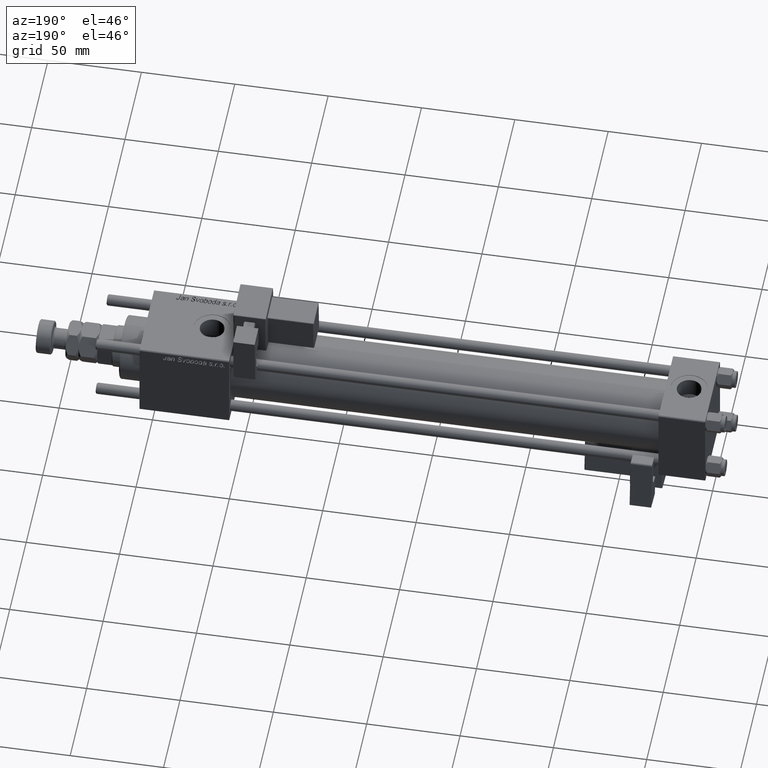
[diagram: clean part render]
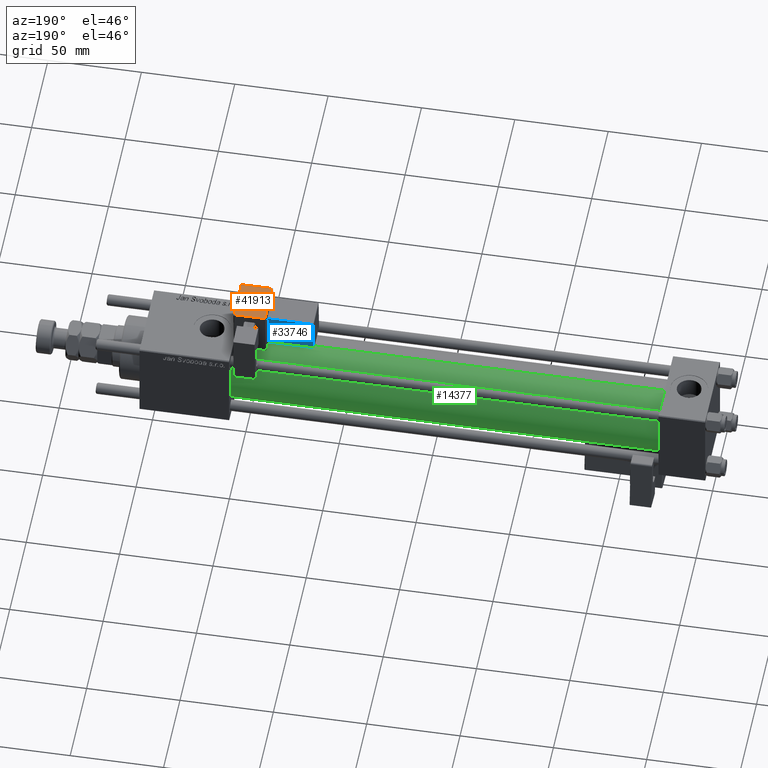
[diagram: same view with three faces highlighted in distinct colors, each labeled with its STEP entity id]
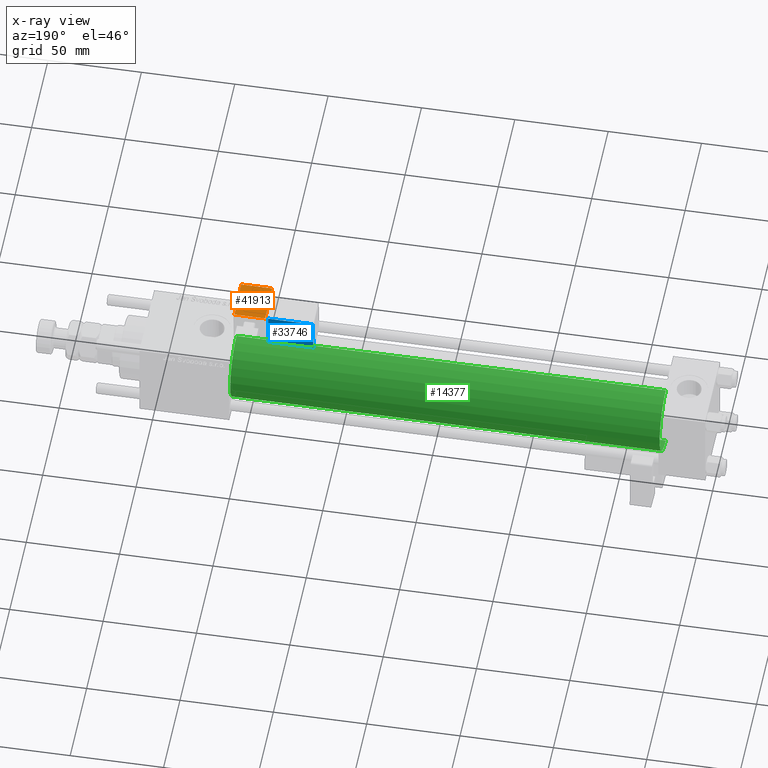
[diagram: x-ray of the same camera — body ghosted, the three highlighted faces saturated]
A machine part, auxiliary view with three faces highlighted in distinct colors.
The next image is the same camera in x-ray (body ghosted, the three faces saturated) — at least one of them is partly hidden behind the body in this view.
Their STEP definitions:

[orange] entity #41913 — the highlighted planar face has unit normal (0, -0.0692, -0.9976).
#2528 = DIRECTION ( 'NONE',  ( -1.000000000000000000, -0.000000000000000000, 0.000000000000000000 ) ) ;
#2766 = DIRECTION ( 'NONE',  ( -0.000000000000000000, -1.000000000000000000, -0.000000000000000000 ) ) ;
#3749 = DIRECTION ( 'NONE',  ( 0.000000000000000000, 0.000000000000000000, 1.000000000000000000 ) ) ;
#3916 = EDGE_CURVE ( 'NONE', #35099, #11605, #10267, .T. ) ;
#10267 = LINE ( 'NONE', #49947, #33295 ) ;
#11002 = VERTEX_POINT ( 'NONE', #13899 ) ;
#11411 = VECTOR ( 'NONE', #2766, 1000.000000000000000 ) ;
#11605 = VERTEX_POINT ( 'NONE', #57174 ) ;
#13043 = VECTOR ( 'NONE', #46683, 1000.000000000000000 ) ;
#13390 = ORIENTED_EDGE ( 'NONE', *, *, #18334, .T. ) ;
#13899 = CARTESIAN_POINT ( 'NONE',  ( -8.250000000000003553, -33.25000000000000000, -1.000000000000000222 ) ) ;
#16527 = CARTESIAN_POINT ( 'NONE',  ( -8.250000000000003553, -12.25000000000000000, -1.000000000000000222 ) ) ;
#17407 = PLANE ( 'NONE',  #38586 ) ;
#18334 = EDGE_CURVE ( 'NONE', #11605, #59000, #21807, .T. ) ;
#21572 = CARTESIAN_POINT ( 'NONE',  ( 8.750000000000003553, -33.25000000000000000, -1.000000000000000222 ) ) ;
#21608 = LINE ( 'NONE', #32050, #13043 ) ;
#21807 = LINE ( 'NONE', #32246, #11411 ) ;
#27705 = ORIENTED_EDGE ( 'NONE', *, *, #36612, .T. ) ;
#28072 = ORIENTED_EDGE ( 'NONE', *, *, #59476, .T. ) ;
#29618 = DIRECTION ( 'NONE',  ( 1.000000000000000000, -0.000000000000000000, 0.000000000000000000 ) ) ;
#30182 = ORIENTED_EDGE ( 'NONE', *, *, #3916, .T. ) ;
#31688 = DIRECTION ( 'NONE',  ( 1.000000000000000000, 0.000000000000000000, -0.000000000000000000 ) ) ;
#32050 = CARTESIAN_POINT ( 'NONE',  ( -8.250000000000003553, -33.75000000000000000, -1.000000000000000222 ) ) ;
#32246 = CARTESIAN_POINT ( 'NONE',  ( 8.250000000000003553, -33.75000000000000000, -1.000000000000000222 ) ) ;
#33295 = VECTOR ( 'NONE', #29618, 1000.000000000000000 ) ;
#35099 = VERTEX_POINT ( 'NONE', #16527 ) ;
#36612 = EDGE_CURVE ( 'NONE', #11002, #35099, #21608, .T. ) ;
#38586 = AXIS2_PLACEMENT_3D ( 'NONE', #61212, #3749, #31688 ) ;
#41913 = ADVANCED_FACE ( 'NONE', ( #57072 ), #17407, .F. ) ;
#43097 = VECTOR ( 'NONE', #2528, 1000.000000000000000 ) ;
#46683 = DIRECTION ( 'NONE',  ( -0.000000000000000000, 1.000000000000000000, 0.000000000000000000 ) ) ;
#49947 = CARTESIAN_POINT ( 'NONE',  ( 8.750000000000003553, -12.25000000000000000, -1.000000000000000222 ) ) ;
#51524 = EDGE_LOOP ( 'NONE', ( #30182, #13390, #28072, #27705 ) ) ;
#52167 = CARTESIAN_POINT ( 'NONE',  ( 8.250000000000003553, -33.25000000000000000, -1.000000000000000222 ) ) ;
#55227 = LINE ( 'NONE', #21572, #43097 ) ;
#57072 = FACE_OUTER_BOUND ( 'NONE', #51524, .T. ) ;
#57174 = CARTESIAN_POINT ( 'NONE',  ( 8.250000000000003553, -12.25000000000000000, -1.000000000000000222 ) ) ;
#59000 = VERTEX_POINT ( 'NONE', #52167 ) ;
#59476 = EDGE_CURVE ( 'NONE', #59000, #11002, #55227, .T. ) ;
#61212 = CARTESIAN_POINT ( 'NONE',  ( 8.750000000000003553, -33.75000000000000000, -1.000000000000000222 ) ) ;

[blue] entity #33746 — the highlighted planar face has unit normal (0, -0.9976, 0.0692).
#3818 = VERTEX_POINT ( 'NONE', #53118 ) ;
#5697 = ORIENTED_EDGE ( 'NONE', *, *, #59700, .T. ) ;
#8532 = DIRECTION ( 'NONE',  ( -1.000000000000000000, 0.000000000000000000, -1.334402673828313339E-16 ) ) ;
#8584 = VECTOR ( 'NONE', #13772, 1000.000000000000000 ) ;
#8987 = EDGE_LOOP ( 'NONE', ( #47765, #58691, #39573, #5697 ) ) ;
#13772 = DIRECTION ( 'NONE',  ( 1.000000000000000000, -0.000000000000000000, 1.334402673828313339E-16 ) ) ;
#14251 = LINE ( 'NONE', #39327, #18290 ) ;
#17778 = VECTOR ( 'NONE', #25001, 1000.000000000000000 ) ;
#18290 = VECTOR ( 'NONE', #29165, 1000.000000000000000 ) ;
#19993 = VERTEX_POINT ( 'NONE', #59649 ) ;
#20962 = EDGE_CURVE ( 'NONE', #19993, #43950, #52010, .T. ) ;
#22226 = FACE_OUTER_BOUND ( 'NONE', #8987, .T. ) ;
#23393 = EDGE_CURVE ( 'NONE', #3818, #35434, #52188, .T. ) ;
#25001 = DIRECTION ( 'NONE',  ( 1.734723475976807341E-16, -0.000000000000000000, -1.000000000000000000 ) ) ;
#28378 = CARTESIAN_POINT ( 'NONE',  ( 33.25000000000000000, -15.25000000000000000, 21.50000000000000355 ) ) ;
#29165 = DIRECTION ( 'NONE',  ( -1.334402673828313339E-16, 0.000000000000000000, 1.000000000000000000 ) ) ;
#32051 = DIRECTION ( 'NONE',  ( 0.000000000000000000, -1.000000000000000000, 0.000000000000000000 ) ) ;
#32166 = CARTESIAN_POINT ( 'NONE',  ( 33.75000000000000000, -15.25000000000000000, 21.50000000000000355 ) ) ;
#33746 = ADVANCED_FACE ( 'NONE', ( #22226 ), #61267, .F. ) ;
#35434 = VERTEX_POINT ( 'NONE', #28378 ) ;
#39327 = CARTESIAN_POINT ( 'NONE',  ( 9.250000000000001776, -15.25000000000000000, 22.00000000000000355 ) ) ;
#39573 = ORIENTED_EDGE ( 'NONE', *, *, #23393, .T. ) ;
#41596 = CARTESIAN_POINT ( 'NONE',  ( 33.75000000000000000, -15.25000000000000000, 22.00000000000000711 ) ) ;
#41632 = EDGE_CURVE ( 'NONE', #43950, #3818, #14251, .T. ) ;
#43950 = VERTEX_POINT ( 'NONE', #47808 ) ;
#44054 = CARTESIAN_POINT ( 'NONE',  ( 33.25000000000000000, -15.25000000000000000, 2.000000000000008438 ) ) ;
#47549 = AXIS2_PLACEMENT_3D ( 'NONE', #41596, #32051, #51432 ) ;
#47765 = ORIENTED_EDGE ( 'NONE', *, *, #20962, .T. ) ;
#47808 = CARTESIAN_POINT ( 'NONE',  ( 9.250000000000003553, -15.25000000000000000, 2.500000000000005773 ) ) ;
#48003 = VECTOR ( 'NONE', #8532, 1000.000000000000000 ) ;
#51432 = DIRECTION ( 'NONE',  ( 0.000000000000000000, -0.000000000000000000, -1.000000000000000000 ) ) ;
#52010 = LINE ( 'NONE', #56140, #48003 ) ;
#52188 = LINE ( 'NONE', #32166, #8584 ) ;
#53118 = CARTESIAN_POINT ( 'NONE',  ( 9.250000000000001776, -15.25000000000000000, 21.50000000000000000 ) ) ;
#53268 = LINE ( 'NONE', #44054, #17778 ) ;
#56140 = CARTESIAN_POINT ( 'NONE',  ( 33.75000000000000000, -15.25000000000000000, 2.500000000000009326 ) ) ;
#58691 = ORIENTED_EDGE ( 'NONE', *, *, #41632, .T. ) ;
#59649 = CARTESIAN_POINT ( 'NONE',  ( 33.25000000000000000, -15.25000000000000000, 2.500000000000009326 ) ) ;
#59700 = EDGE_CURVE ( 'NONE', #35434, #19993, #53268, .T. ) ;
#61267 = PLANE ( 'NONE',  #47549 ) ;

[green] entity #14377 — the highlighted cylindrical surface (edge-blend (fillet) strip) has radius 19 mm, axis along (-1, -0, -0).
#6579 = CARTESIAN_POINT ( 'NONE',  ( 255.0000000000000000, -2.602085213965210642E-15, 0.000000000000000000 ) ) ;
#7416 = VERTEX_POINT ( 'NONE', #21274 ) ;
#9409 = DIRECTION ( 'NONE',  ( -1.000000000000000000, -0.000000000000000000, -0.000000000000000000 ) ) ;
#12126 = DIRECTION ( 'NONE',  ( -1.000000000000000000, -0.000000000000000000, -0.000000000000000000 ) ) ;
#14377 = ADVANCED_FACE ( 'NONE', ( #31298 ), #35438, .T. ) ;
#16674 = DIRECTION ( 'NONE',  ( 0.000000000000000000, 0.000000000000000000, 1.000000000000000000 ) ) ;
#19125 = EDGE_LOOP ( 'NONE', ( #21821, #54173, #48935, #48447 ) ) ;
#21274 = CARTESIAN_POINT ( 'NONE',  ( 24.99999999999999289, -2.602085213965210642E-15, 19.00000000000000000 ) ) ;
#21776 = DIRECTION ( 'NONE',  ( 0.000000000000000000, 0.000000000000000000, 1.000000000000000000 ) ) ;
#21821 = ORIENTED_EDGE ( 'NONE', *, *, #51753, .F. ) ;
#25935 = DIRECTION ( 'NONE',  ( -1.000000000000000000, -0.000000000000000000, -0.000000000000000000 ) ) ;
#29382 = LINE ( 'NONE', #62407, #41160 ) ;
#29702 = CARTESIAN_POINT ( 'NONE',  ( 24.99999999999999289, -2.602085213965210642E-15, 0.000000000000000000 ) ) ;
#30991 = CARTESIAN_POINT ( 'NONE',  ( 255.0000000000000000, -2.752562955852396712E-16, -19.00000000000000000 ) ) ;
#31159 = CARTESIAN_POINT ( 'NONE',  ( 255.0000000000000000, -2.752562955852396712E-16, -19.00000000000000000 ) ) ;
#31298 = FACE_OUTER_BOUND ( 'NONE', #19125, .T. ) ;
#35438 = CYLINDRICAL_SURFACE ( 'NONE', #44849, 19.00000000000000000 ) ;
#35771 = DIRECTION ( 'NONE',  ( 0.000000000000000000, 0.000000000000000000, -1.000000000000000000 ) ) ;
#38120 = AXIS2_PLACEMENT_3D ( 'NONE', #29702, #49089, #16674 ) ;
#39825 = VECTOR ( 'NONE', #12126, 1000.000000000000000 ) ;
#41160 = VECTOR ( 'NONE', #9409, 1000.000000000000000 ) ;
#41749 = VERTEX_POINT ( 'NONE', #61456 ) ;
#42072 = VERTEX_POINT ( 'NONE', #30991 ) ;
#44377 = DIRECTION ( 'NONE',  ( 1.000000000000000000, 0.000000000000000000, 0.000000000000000000 ) ) ;
#44849 = AXIS2_PLACEMENT_3D ( 'NONE', #6579, #25935, #21776 ) ;
#47980 = CIRCLE ( 'NONE', #58116, 19.00000000000000000 ) ;
#48087 = VERTEX_POINT ( 'NONE', #50761 ) ;
#48447 = ORIENTED_EDGE ( 'NONE', *, *, #62118, .F. ) ;
#48935 = ORIENTED_EDGE ( 'NONE', *, *, #62136, .T. ) ;
#49089 = DIRECTION ( 'NONE',  ( 1.000000000000000000, -0.000000000000000000, 0.000000000000000000 ) ) ;
#49286 = CIRCLE ( 'NONE', #38120, 19.00000000000000000 ) ;
#50761 = CARTESIAN_POINT ( 'NONE',  ( 24.99999999999999289, -2.752562955852396712E-16, -19.00000000000000000 ) ) ;
#51239 = EDGE_CURVE ( 'NONE', #42072, #48087, #54058, .T. ) ;
#51753 = EDGE_CURVE ( 'NONE', #42072, #41749, #47980, .T. ) ;
#54058 = LINE ( 'NONE', #31159, #39825 ) ;
#54173 = ORIENTED_EDGE ( 'NONE', *, *, #51239, .T. ) ;
#58116 = AXIS2_PLACEMENT_3D ( 'NONE', #58983, #44377, #35771 ) ;
#58983 = CARTESIAN_POINT ( 'NONE',  ( 255.0000000000000000, -2.602085213965210642E-15, 0.000000000000000000 ) ) ;
#61456 = CARTESIAN_POINT ( 'NONE',  ( 255.0000000000000000, -2.602085213965210642E-15, 19.00000000000000000 ) ) ;
#62118 = EDGE_CURVE ( 'NONE', #41749, #7416, #29382, .T. ) ;
#62136 = EDGE_CURVE ( 'NONE', #48087, #7416, #49286, .T. ) ;
#62407 = CARTESIAN_POINT ( 'NONE',  ( 255.0000000000000000, -2.602085213965210642E-15, 19.00000000000000000 ) ) ;